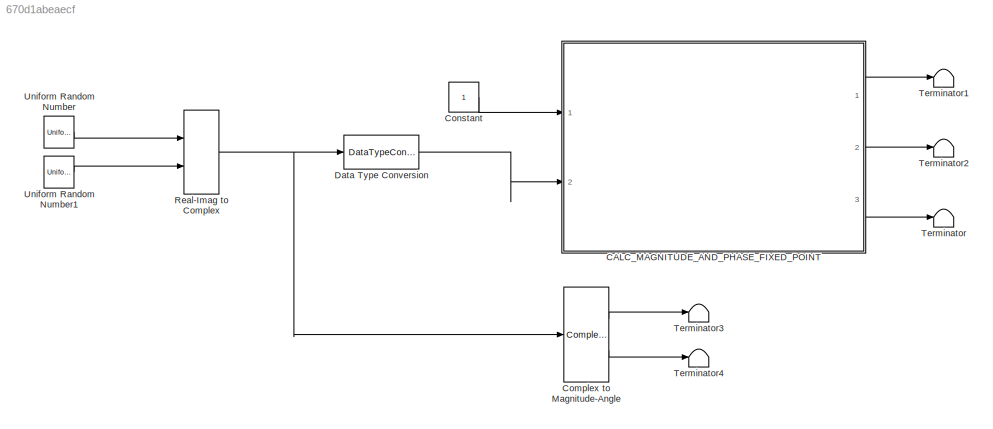
MODEL slx_670d1abeaecf
KIND model
CONFIG AbsTol = auto
CONFIG EnableMultiTasking = on
CONFIG FixedStep = auto
CONFIG InitFcn = test_init
CONFIG MaxStep = auto
CONFIG MinStep = auto
CONFIG RelTol = 1e-3
CONFIG SampleTimeConstraint = Unconstrained
CONFIG SolverName = FixedStepDiscrete
CONFIG StartTime = 0.0
CONFIG StopTime = 10.0
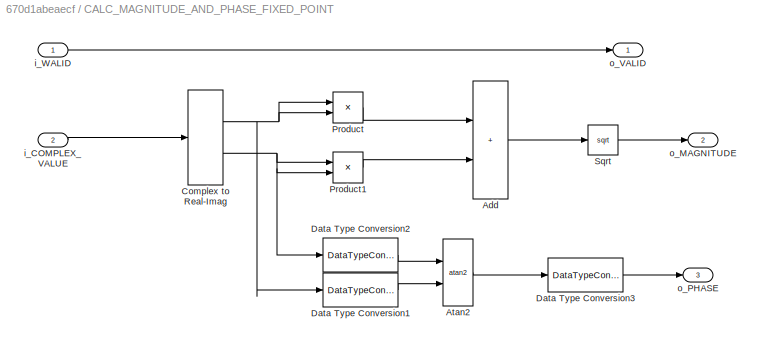
BLOCK [SubSystem] CALC_MAGNITUDE_AND_PHASE_FIXED_POINT
  Ports = [2, 3]
  RequestExecContextInheritance = off
BLOCK [Sum] CALC_MAGNITUDE_AND_PHASE_FIXED_POINT/Add
  IconShape = rectangular
  OutDataTypeStr = fixdt(1,33,11)
  Ports = [2, 1]
  RndMeth = Round
  SaturateOnIntegerOverflow = on
BLOCK [Trigonometry] CALC_MAGNITUDE_AND_PHASE_FIXED_POINT/Atan2
  Operator = atan2
  Ports = [2, 1]
BLOCK [ComplexToRealImag] CALC_MAGNITUDE_AND_PHASE_FIXED_POINT/Complex to Real-Imag
  Ports = [1, 2]
BLOCK [DataTypeConversion] CALC_MAGNITUDE_AND_PHASE_FIXED_POINT/Data Type Conversion1
  OutDataTypeStr = single
  RndMeth = Floor
  SaturateOnIntegerOverflow = off
BLOCK [DataTypeConversion] CALC_MAGNITUDE_AND_PHASE_FIXED_POINT/Data Type Conversion2
  OutDataTypeStr = single
  RndMeth = Floor
  SaturateOnIntegerOverflow = off
BLOCK [DataTypeConversion] CALC_MAGNITUDE_AND_PHASE_FIXED_POINT/Data Type Conversion3
  OutDataTypeStr = fixdt(1,16,13)
  RndMeth = Round
  SaturateOnIntegerOverflow = off
BLOCK [Product] CALC_MAGNITUDE_AND_PHASE_FIXED_POINT/Product
  OutDataTypeStr = fixdt(1,33,11)
  Ports = [2, 1]
  RndMeth = Round
  SaturateOnIntegerOverflow = on
BLOCK [Product] CALC_MAGNITUDE_AND_PHASE_FIXED_POINT/Product1
  OutDataTypeStr = fixdt(1,33,11)
  Ports = [2, 1]
  RndMeth = Round
  SaturateOnIntegerOverflow = on
BLOCK [Sqrt] CALC_MAGNITUDE_AND_PHASE_FIXED_POINT/Sqrt
BLOCK [Inport] CALC_MAGNITUDE_AND_PHASE_FIXED_POINT/i_COMPLEX_VALUE
  OutDataTypeStr = fixdt(1,32,11)
  Port = 2
BLOCK [Inport] CALC_MAGNITUDE_AND_PHASE_FIXED_POINT/i_WALID
BLOCK [Outport] CALC_MAGNITUDE_AND_PHASE_FIXED_POINT/o_MAGNITUDE
  OutDataTypeStr = fixdt(1,33,11)
  Port = 2
BLOCK [Outport] CALC_MAGNITUDE_AND_PHASE_FIXED_POINT/o_PHASE
  OutDataTypeStr = fixdt(1,16,13)
  Port = 3
BLOCK [Outport] CALC_MAGNITUDE_AND_PHASE_FIXED_POINT/o_VALID
BLOCK [ComplexToMagnitudeAngle] Complex to Magnitude-Angle
  Ports = [1, 2]
BLOCK [Constant] Constant
  OutDataTypeStr = boolean
  SampleTime = 1
BLOCK [DataTypeConversion] Data Type Conversion
  OutDataTypeStr = fixdt(1,32,11)
  RndMeth = Round
BLOCK [RealImagToComplex] Real-Imag to Complex
  NameLocation = right
  Ports = [2, 1]
BLOCK [Terminator] Terminator
BLOCK [Terminator] Terminator1
BLOCK [Terminator] Terminator2
BLOCK [Terminator] Terminator3
BLOCK [Terminator] Terminator4
BLOCK [UniformRandomNumber] Uniform Random Number
  Maximum = 2097151.49999809265
  Minimum = 0
  SampleTime = 1
  Seed = 21
BLOCK [UniformRandomNumber] Uniform Random Number1
  Maximum = 2097151.49999809265
  Minimum = 0
  SampleTime = 1
  Seed = 22
LINE CALC_MAGNITUDE_AND_PHASE_FIXED_POINT/Add:1 -> CALC_MAGNITUDE_AND_PHASE_FIXED_POINT/Sqrt:1
LINE CALC_MAGNITUDE_AND_PHASE_FIXED_POINT/Atan2:1 -> CALC_MAGNITUDE_AND_PHASE_FIXED_POINT/Data Type Conversion3:1
NET CALC_MAGNITUDE_AND_PHASE_FIXED_POINT/Complex to Real-Imag:1 -> CALC_MAGNITUDE_AND_PHASE_FIXED_POINT/Data Type Conversion1:1, CALC_MAGNITUDE_AND_PHASE_FIXED_POINT/Product:1, CALC_MAGNITUDE_AND_PHASE_FIXED_POINT/Product:2
NET CALC_MAGNITUDE_AND_PHASE_FIXED_POINT/Complex to Real-Imag:2 -> CALC_MAGNITUDE_AND_PHASE_FIXED_POINT/Data Type Conversion2:1, CALC_MAGNITUDE_AND_PHASE_FIXED_POINT/Product1:1, CALC_MAGNITUDE_AND_PHASE_FIXED_POINT/Product1:2
LINE CALC_MAGNITUDE_AND_PHASE_FIXED_POINT/Data Type Conversion1:1 -> CALC_MAGNITUDE_AND_PHASE_FIXED_POINT/Atan2:2
LINE CALC_MAGNITUDE_AND_PHASE_FIXED_POINT/Data Type Conversion2:1 -> CALC_MAGNITUDE_AND_PHASE_FIXED_POINT/Atan2:1
LINE CALC_MAGNITUDE_AND_PHASE_FIXED_POINT/Data Type Conversion3:1 -> CALC_MAGNITUDE_AND_PHASE_FIXED_POINT/o_PHASE:1
LINE CALC_MAGNITUDE_AND_PHASE_FIXED_POINT/Product1:1 -> CALC_MAGNITUDE_AND_PHASE_FIXED_POINT/Add:2
LINE CALC_MAGNITUDE_AND_PHASE_FIXED_POINT/Product:1 -> CALC_MAGNITUDE_AND_PHASE_FIXED_POINT/Add:1
LINE CALC_MAGNITUDE_AND_PHASE_FIXED_POINT/Sqrt:1 -> CALC_MAGNITUDE_AND_PHASE_FIXED_POINT/o_MAGNITUDE:1
LINE CALC_MAGNITUDE_AND_PHASE_FIXED_POINT/i_COMPLEX_VALUE:1 -> CALC_MAGNITUDE_AND_PHASE_FIXED_POINT/Complex to Real-Imag:1
LINE CALC_MAGNITUDE_AND_PHASE_FIXED_POINT/i_WALID:1 -> CALC_MAGNITUDE_AND_PHASE_FIXED_POINT/o_VALID:1
LINE CALC_MAGNITUDE_AND_PHASE_FIXED_POINT:1 -> Terminator1:1
LINE CALC_MAGNITUDE_AND_PHASE_FIXED_POINT:2 -> Terminator2:1
LINE CALC_MAGNITUDE_AND_PHASE_FIXED_POINT:3 -> Terminator:1
LINE Complex to Magnitude-Angle:1 -> Terminator3:1
LINE Complex to Magnitude-Angle:2 -> Terminator4:1
LINE Constant:1 -> CALC_MAGNITUDE_AND_PHASE_FIXED_POINT:1
LINE Data Type Conversion:1 -> CALC_MAGNITUDE_AND_PHASE_FIXED_POINT:2
NET Real-Imag to Complex:1 -> Complex to Magnitude-Angle:1, Data Type Conversion:1
LINE Uniform Random Number1:1 -> Real-Imag to Complex:2
LINE Uniform Random Number:1 -> Real-Imag to Complex:1
note: NET lines group one-source signal fan-out (src -> all destinations, sorted); 1:1 wires keep LINE
